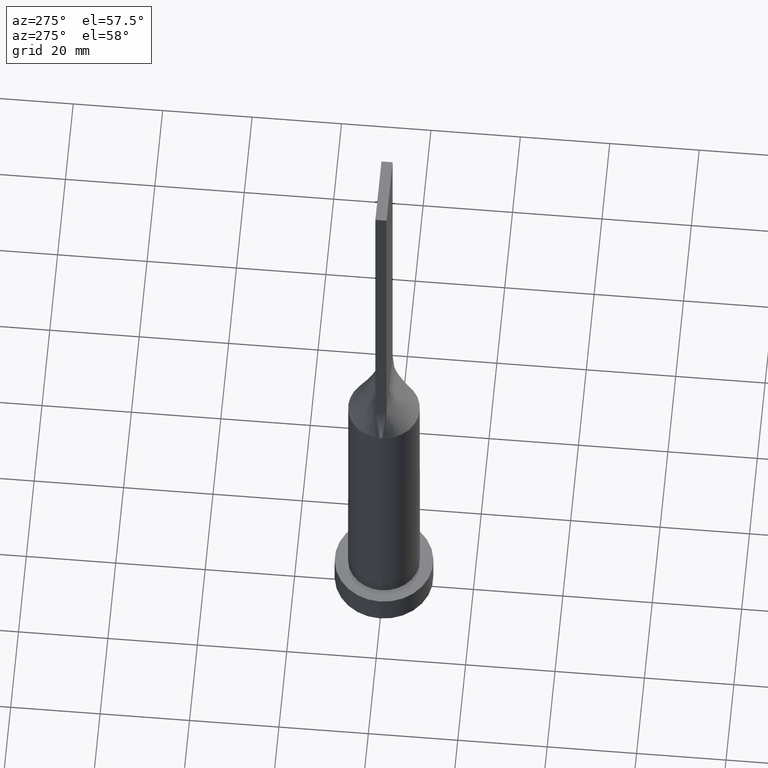
[diagram: clean part render]
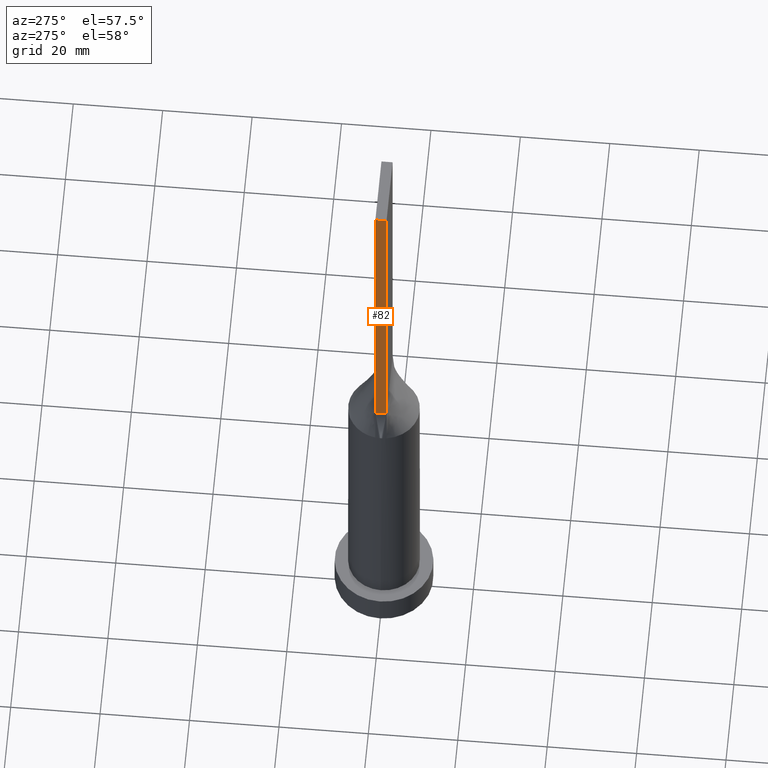
[diagram: same view with one face highlighted and labeled with its STEP entity id]
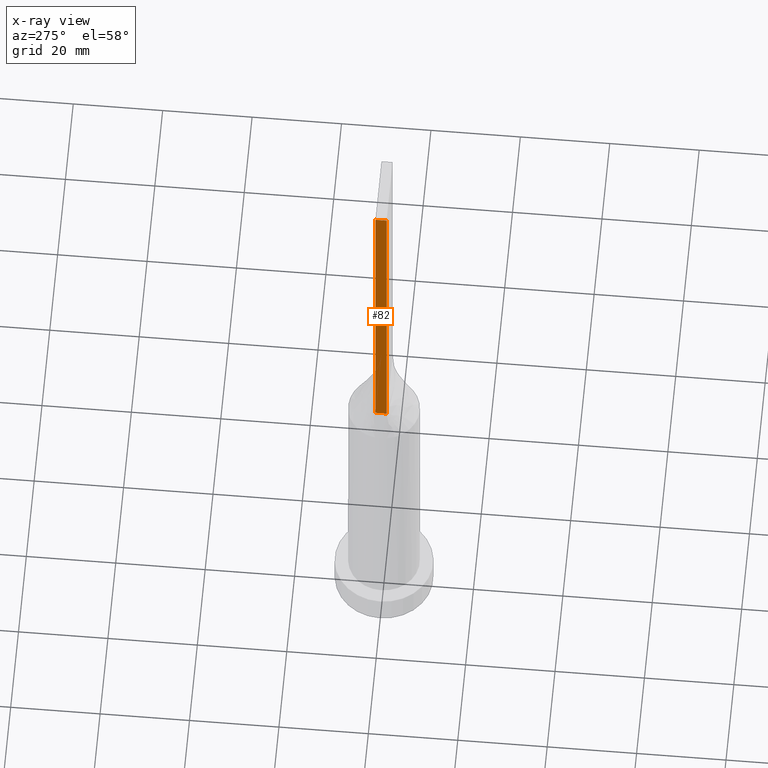
[diagram: x-ray of the same camera — body ghosted, the highlighted face saturated]
A machine part, auxiliary view. The second image highlights one B-rep face of the part: STEP entity #82.
The next image is the same camera in x-ray: the body ghosted, the highlighted face saturated — about 0% of this face is hidden behind the body in this view.
In plain terms, the highlighted planar face has unit normal (1, 0, -0).
Its self-contained STEP definition (entity closure, byte-faithful):
#6 = VERTEX_POINT ( 'NONE', #138 ) ;
#31 = EDGE_CURVE ( 'NONE', #147, #6, #89, .T. ) ;
#35 = EDGE_CURVE ( 'NONE', #368, #6, #584, .T. ) ;
#38 = VECTOR ( 'NONE', #641, 1000.000000000000000 ) ;
#40 = ORIENTED_EDGE ( 'NONE', *, *, #449, .T. ) ;
#82 = ADVANCED_FACE ( 'NONE', ( #525 ), #340, .F. ) ;
#89 = LINE ( 'NONE', #580, #38 ) ;
#101 = VECTOR ( 'NONE', #369, 1000.000000000000000 ) ;
#123 = LINE ( 'NONE', #332, #323 ) ;
#138 = CARTESIAN_POINT ( 'NONE',  ( -7.750000000000000000, -1.249999999999998890, 80.00000000000000000 ) ) ;
#147 = VERTEX_POINT ( 'NONE', #623 ) ;
#153 = CARTESIAN_POINT ( 'NONE',  ( -7.750000000000000000, 1.250000000000000222, 80.00000000000000000 ) ) ;
#196 = VECTOR ( 'NONE', #238, 1000.000000000000000 ) ;
#200 = ORIENTED_EDGE ( 'NONE', *, *, #31, .F. ) ;
#235 = CARTESIAN_POINT ( 'NONE',  ( -7.750000000000000000, 1.250000000000000222, 160.0000000000000000 ) ) ;
#238 = DIRECTION ( 'NONE',  ( 0.000000000000000000, -1.000000000000000000, 0.000000000000000000 ) ) ;
#251 = EDGE_LOOP ( 'NONE', ( #508, #200, #260, #40 ) ) ;
#260 = ORIENTED_EDGE ( 'NONE', *, *, #630, .F. ) ;
#323 = VECTOR ( 'NONE', #387, 1000.000000000000000 ) ;
#326 = CARTESIAN_POINT ( 'NONE',  ( -7.750000000000000000, 1.250000000000000222, 160.0000000000000000 ) ) ;
#332 = CARTESIAN_POINT ( 'NONE',  ( -7.750000000000000000, 1.250000000000000222, 160.0000000000000000 ) ) ;
#340 = PLANE ( 'NONE',  #373 ) ;
#347 = CARTESIAN_POINT ( 'NONE',  ( -7.750000000000000000, 1.250000000000000222, 80.00000000000000000 ) ) ;
#368 = VERTEX_POINT ( 'NONE', #153 ) ;
#369 = DIRECTION ( 'NONE',  ( -0.000000000000000000, -0.000000000000000000, -1.000000000000000000 ) ) ;
#373 = AXIS2_PLACEMENT_3D ( 'NONE', #326, #424, #478 ) ;
#387 = DIRECTION ( 'NONE',  ( 0.000000000000000000, -1.000000000000000000, 0.000000000000000000 ) ) ;
#424 = DIRECTION ( 'NONE',  ( 1.000000000000000000, 0.000000000000000000, -0.000000000000000000 ) ) ;
#449 = EDGE_CURVE ( 'NONE', #633, #368, #467, .T. ) ;
#454 = CARTESIAN_POINT ( 'NONE',  ( -7.750000000000000000, 1.250000000000000222, 160.0000000000000000 ) ) ;
#467 = LINE ( 'NONE', #454, #101 ) ;
#478 = DIRECTION ( 'NONE',  ( -0.000000000000000000, 0.000000000000000000, -1.000000000000000000 ) ) ;
#508 = ORIENTED_EDGE ( 'NONE', *, *, #35, .T. ) ;
#525 = FACE_OUTER_BOUND ( 'NONE', #251, .T. ) ;
#580 = CARTESIAN_POINT ( 'NONE',  ( -7.750000000000000000, -1.249999999999998890, 160.0000000000000000 ) ) ;
#584 = LINE ( 'NONE', #347, #196 ) ;
#623 = CARTESIAN_POINT ( 'NONE',  ( -7.750000000000000000, -1.249999999999998890, 160.0000000000000000 ) ) ;
#630 = EDGE_CURVE ( 'NONE', #633, #147, #123, .T. ) ;
#633 = VERTEX_POINT ( 'NONE', #235 ) ;
#641 = DIRECTION ( 'NONE',  ( -0.000000000000000000, -0.000000000000000000, -1.000000000000000000 ) ) ;